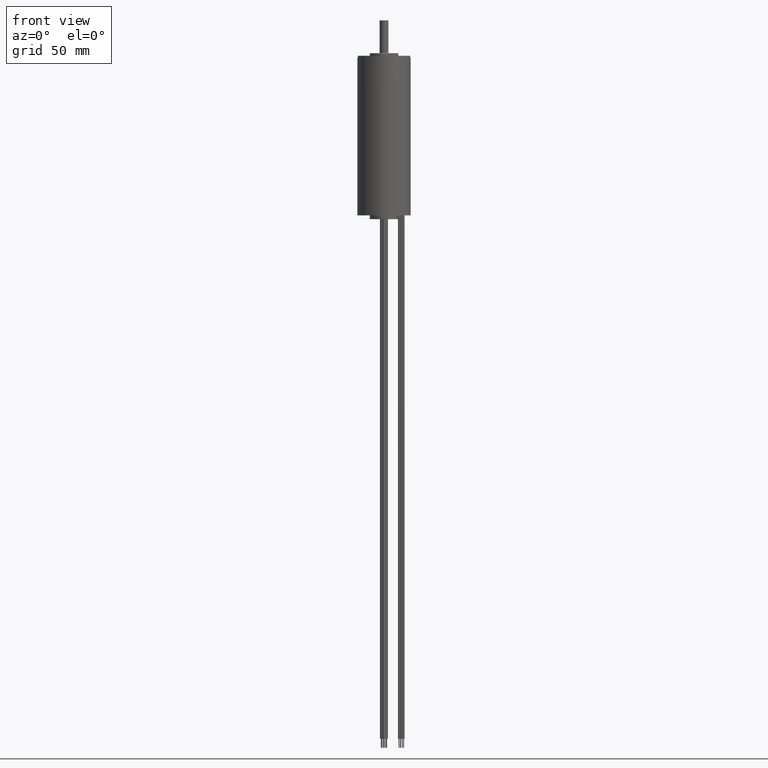
[diagram: clean part render]
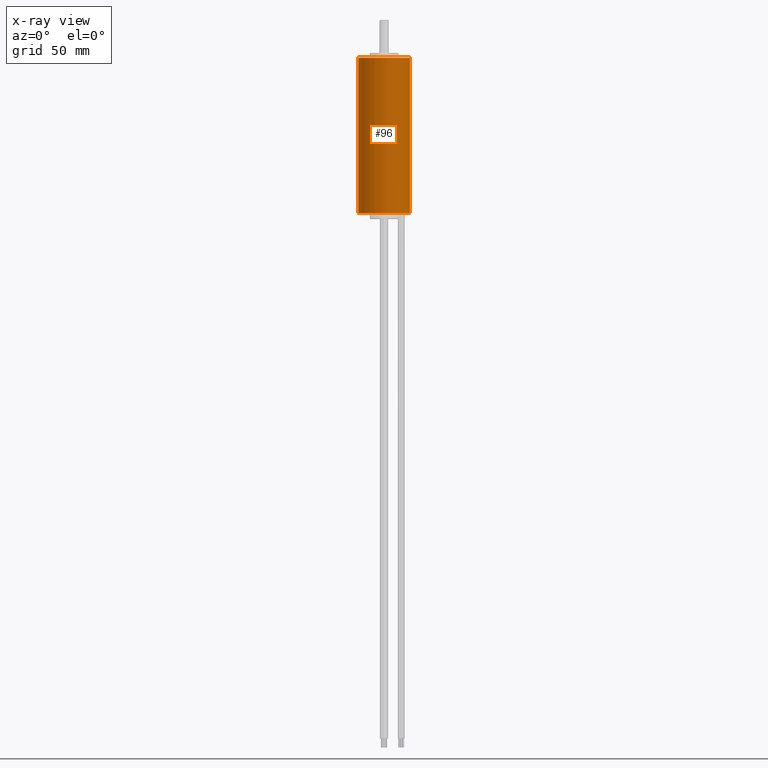
[diagram: x-ray — body ghosted, one internal face saturated and labeled with its STEP entity id]
A machine part, front view, then the same camera in x-ray: the body is ghosted and one INTERNAL B-rep face — a face not visible from any outside direction — is saturated and labeled: STEP entity #96.
In plain terms, the highlighted cylindrical surface (bore or boss wall) has radius 14.5 mm, axis along (0, 0, -1).
Its self-contained STEP definition (entity closure, byte-faithful):
#57 = CYLINDRICAL_SURFACE ( 'NONE', #5942, 14.50000000000000000 ) ;
#96 = ADVANCED_FACE ( 'NONE', ( #8081, #3348 ), #57, .F. ) ;
#285 = ORIENTED_EDGE ( 'NONE', *, *, #1325, .T. ) ;
#936 = CARTESIAN_POINT ( 'NONE',  ( 14.50000000000000000, 0.0000000000000000000, 87.79999999999999716 ) ) ;
#973 = CIRCLE ( 'NONE', #2719, 14.50000000000000000 ) ;
#1325 = EDGE_CURVE ( 'NONE', #3645, #3645, #973, .T. ) ;
#2190 = CARTESIAN_POINT ( 'NONE',  ( 14.50000000000000000, 0.0000000000000000000, 0.2000000000000055067 ) ) ;
#2667 = DIRECTION ( 'NONE',  ( 0.0000000000000000000, 0.0000000000000000000, -1.000000000000000000 ) ) ;
#2719 = AXIS2_PLACEMENT_3D ( 'NONE', #6087, #8017, #2895 ) ;
#2895 = DIRECTION ( 'NONE',  ( 1.000000000000000000, 0.0000000000000000000, 0.0000000000000000000 ) ) ;
#3348 = FACE_OUTER_BOUND ( 'NONE', #7631, .T. ) ;
#3368 = VERTEX_POINT ( 'NONE', #2190 ) ;
#3467 = ORIENTED_EDGE ( 'NONE', *, *, #4789, .T. ) ;
#3590 = EDGE_LOOP ( 'NONE', ( #285 ) ) ;
#3645 = VERTEX_POINT ( 'NONE', #936 ) ;
#3834 = DIRECTION ( 'NONE',  ( -1.000000000000000000, 0.0000000000000000000, 0.0000000000000000000 ) ) ;
#3906 = AXIS2_PLACEMENT_3D ( 'NONE', #4057, #5979, #6431 ) ;
#3924 = CARTESIAN_POINT ( 'NONE',  ( 0.0000000000000000000, 0.0000000000000000000, 88.00000000000000000 ) ) ;
#4057 = CARTESIAN_POINT ( 'NONE',  ( 0.0000000000000000000, 0.0000000000000000000, 0.2000000000000055067 ) ) ;
#4789 = EDGE_CURVE ( 'NONE', #3368, #3368, #5210, .T. ) ;
#5210 = CIRCLE ( 'NONE', #3906, 14.50000000000000000 ) ;
#5942 = AXIS2_PLACEMENT_3D ( 'NONE', #3924, #2667, #3834 ) ;
#5979 = DIRECTION ( 'NONE',  ( 0.0000000000000000000, 0.0000000000000000000, -1.000000000000000000 ) ) ;
#6087 = CARTESIAN_POINT ( 'NONE',  ( 0.0000000000000000000, 0.0000000000000000000, 87.79999999999999716 ) ) ;
#6431 = DIRECTION ( 'NONE',  ( 1.000000000000000000, 0.0000000000000000000, 0.0000000000000000000 ) ) ;
#7631 = EDGE_LOOP ( 'NONE', ( #3467 ) ) ;
#8017 = DIRECTION ( 'NONE',  ( 0.0000000000000000000, 0.0000000000000000000, 1.000000000000000000 ) ) ;
#8081 = FACE_OUTER_BOUND ( 'NONE', #3590, .T. ) ;